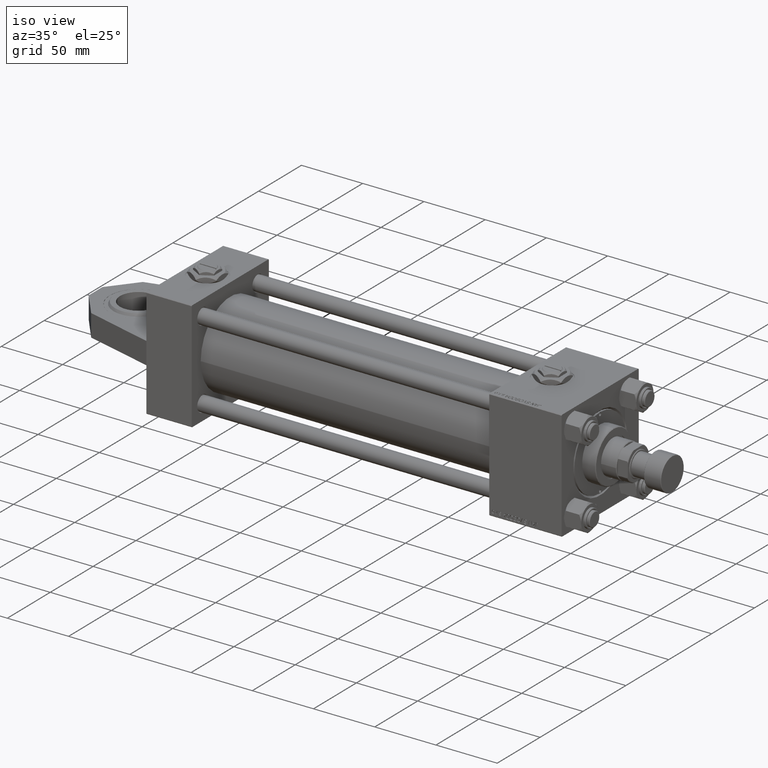
[diagram: clean part render]
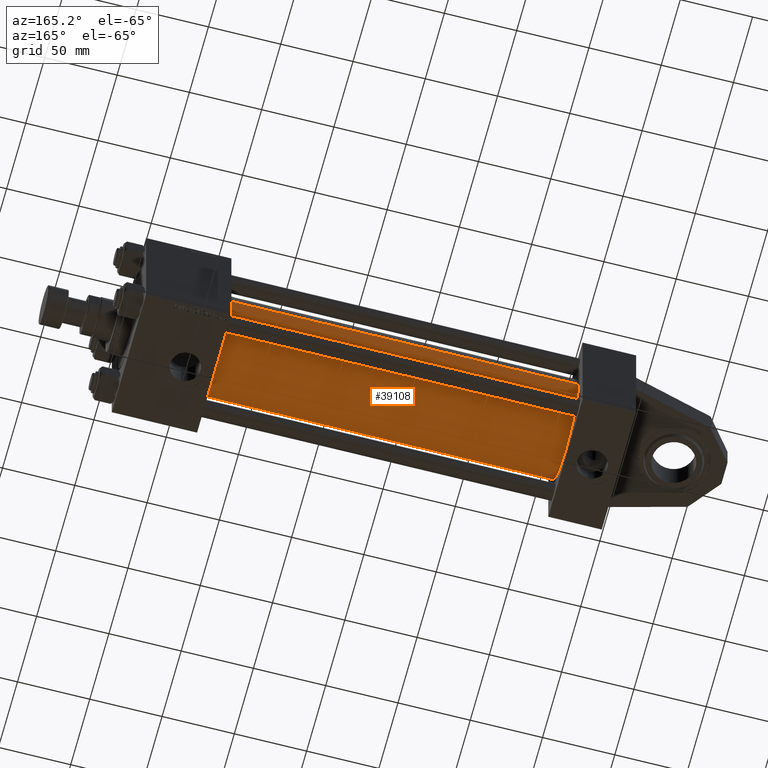
[diagram: tour spotlight — one face highlighted and labeled with its STEP entity id]
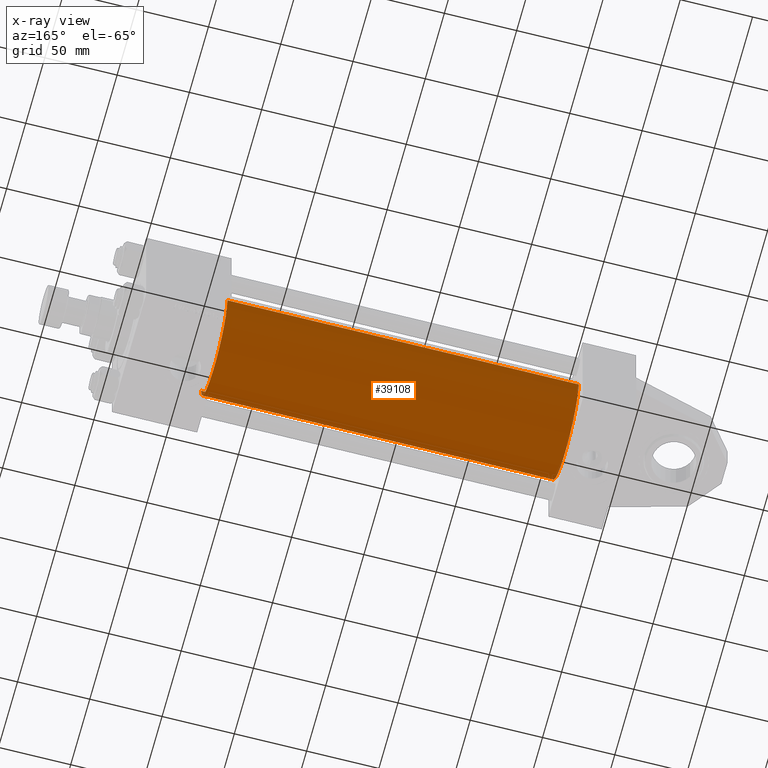
[diagram: x-ray of the same camera — body ghosted, this tour face saturated]
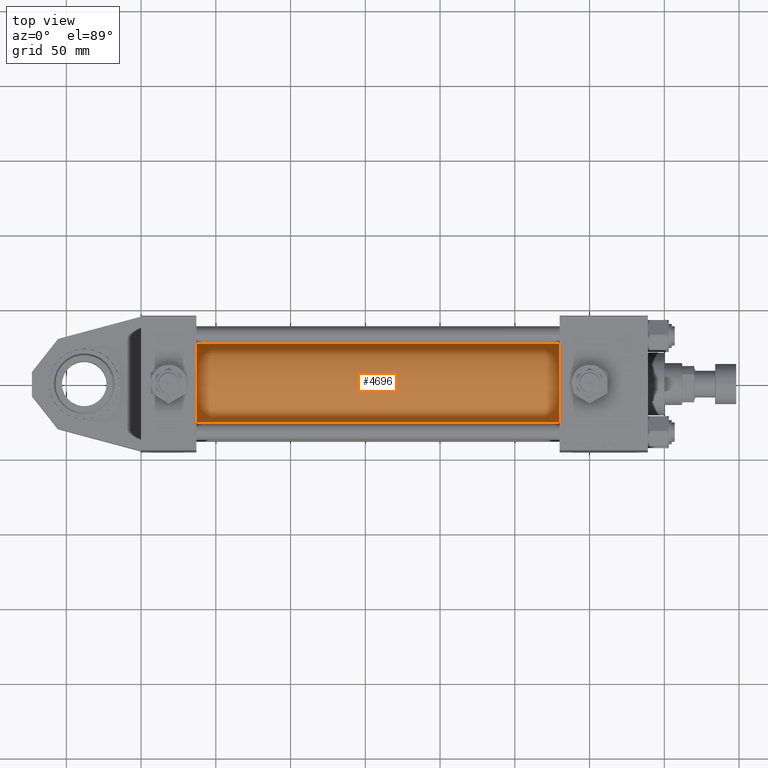
[diagram: tour spotlight — one face highlighted and labeled with its STEP entity id]
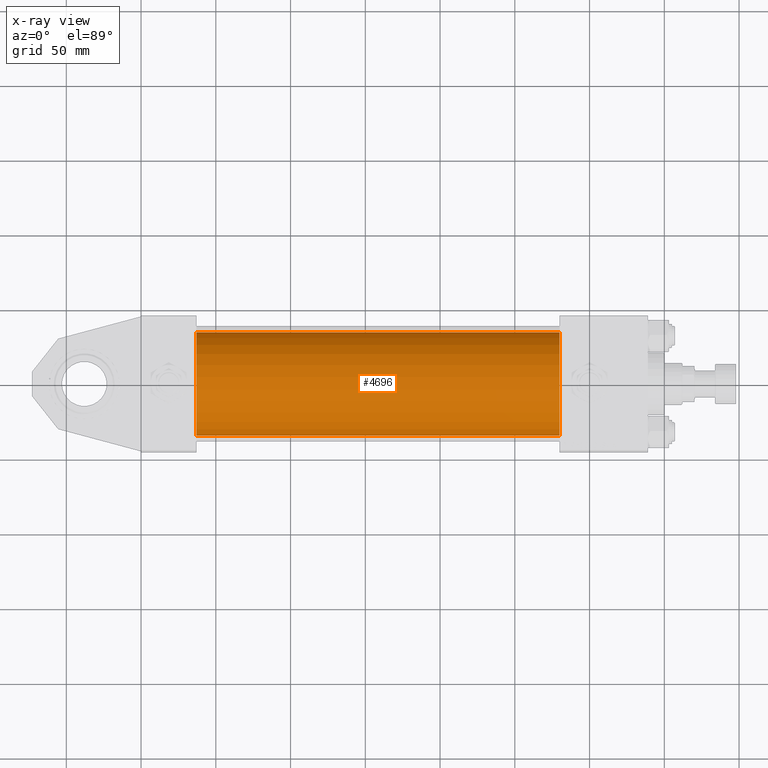
[diagram: x-ray of the same camera — body ghosted, this tour face saturated]
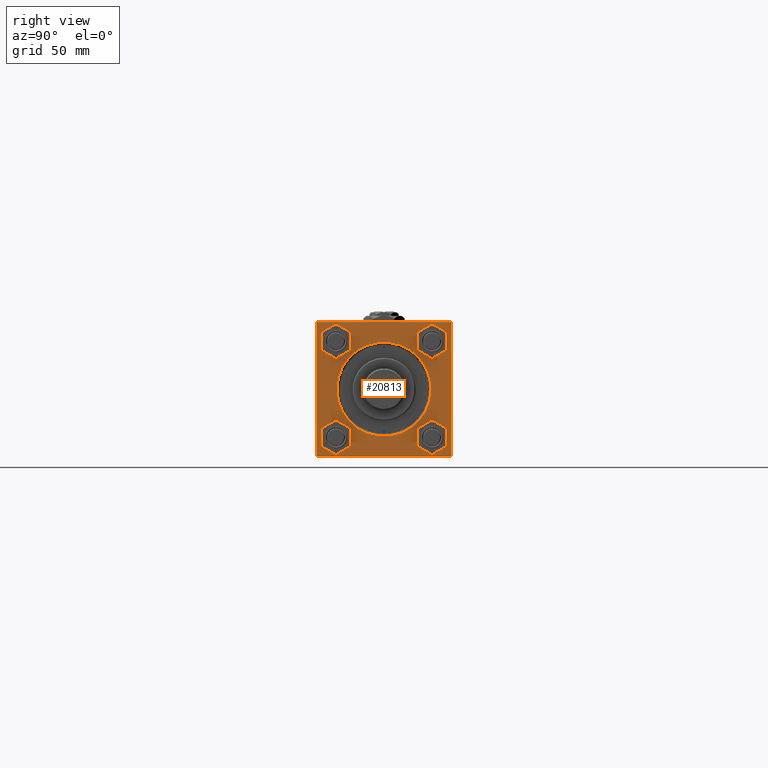
[diagram: tour spotlight — one face highlighted and labeled with its STEP entity id]
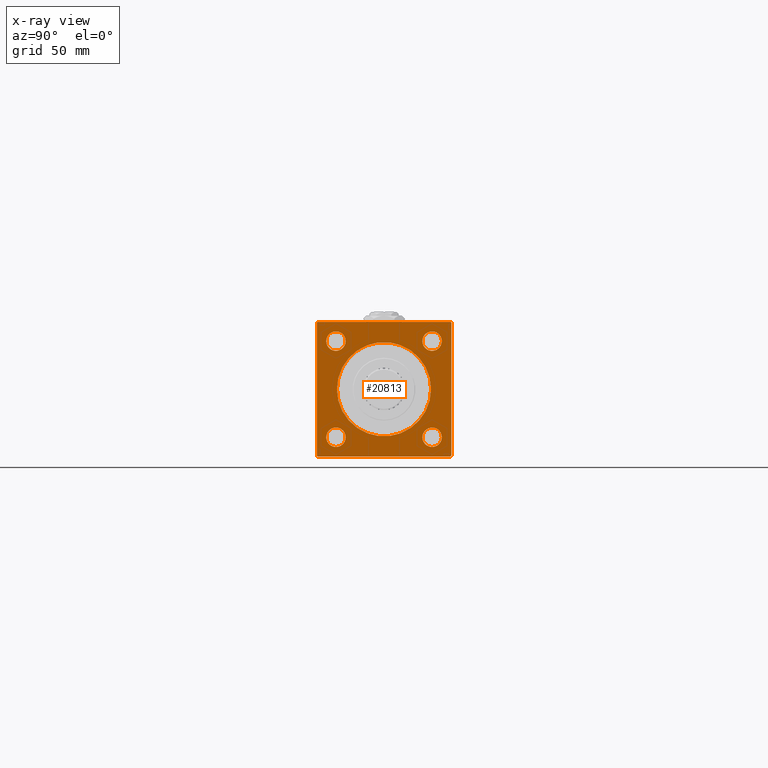
[diagram: x-ray of the same camera — body ghosted, this tour face saturated]
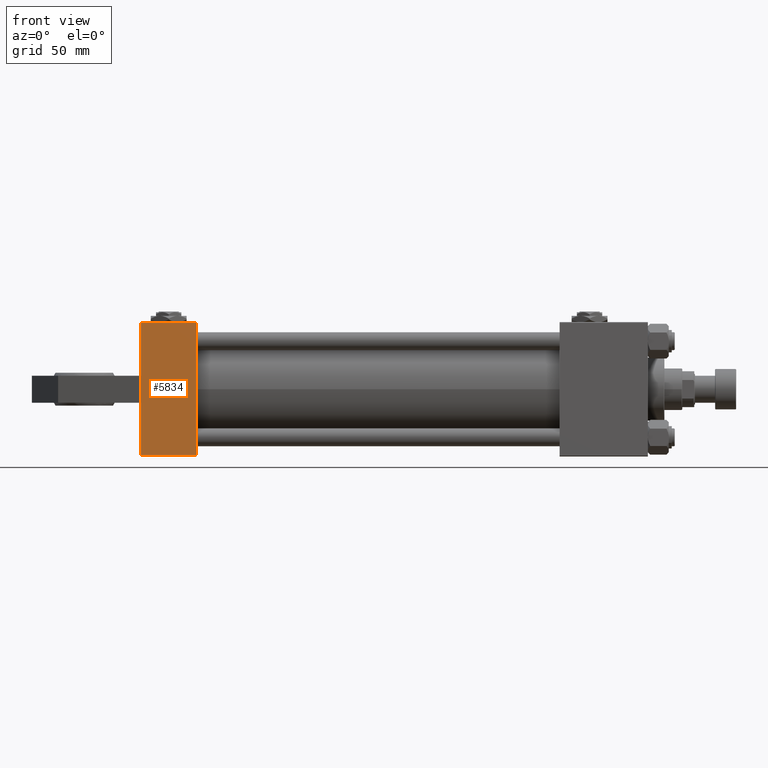
[diagram: tour spotlight — one face highlighted and labeled with its STEP entity id]
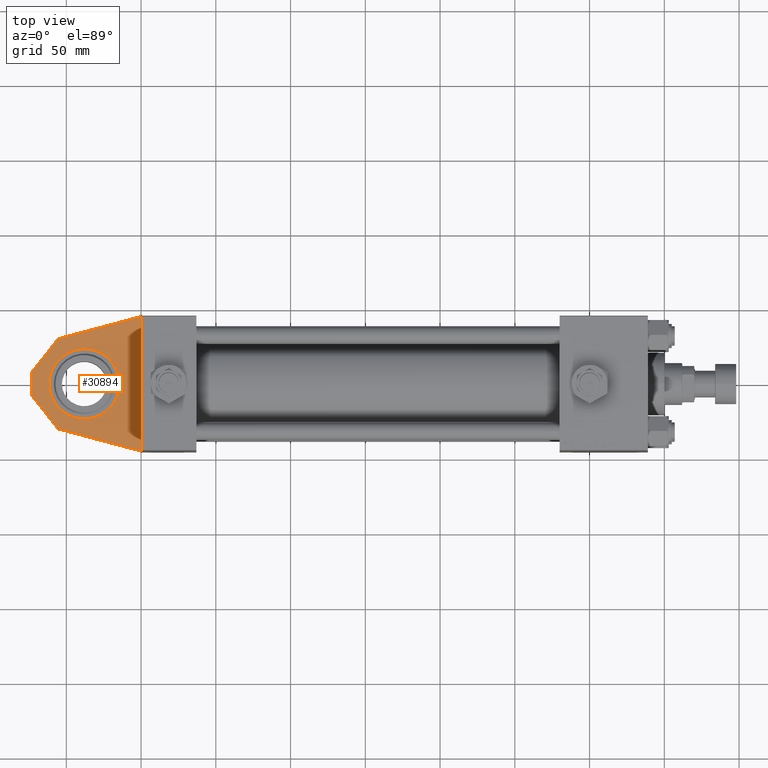
[diagram: tour spotlight — one face highlighted and labeled with its STEP entity id]
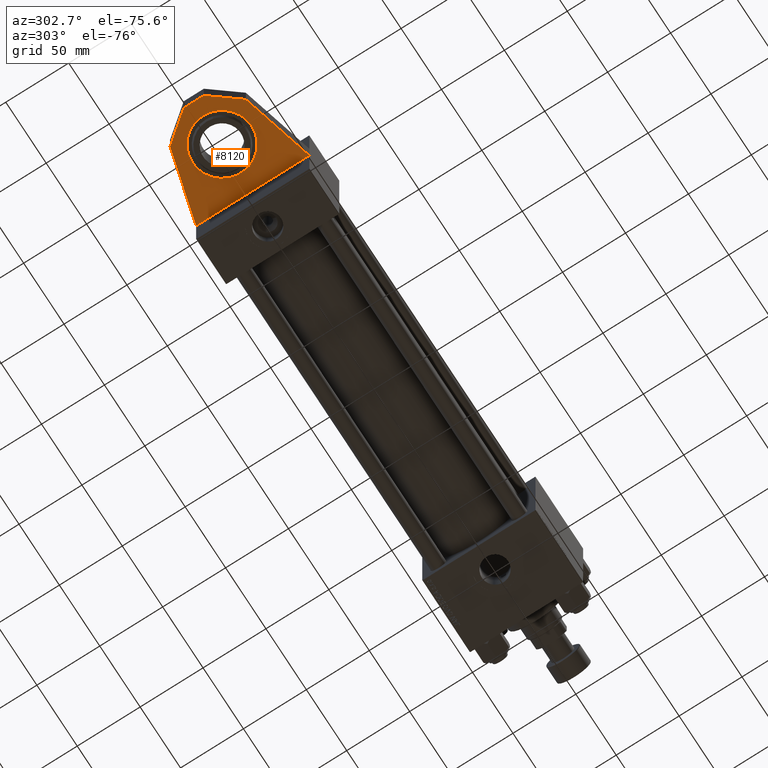
[diagram: tour spotlight — one face highlighted and labeled with its STEP entity id]
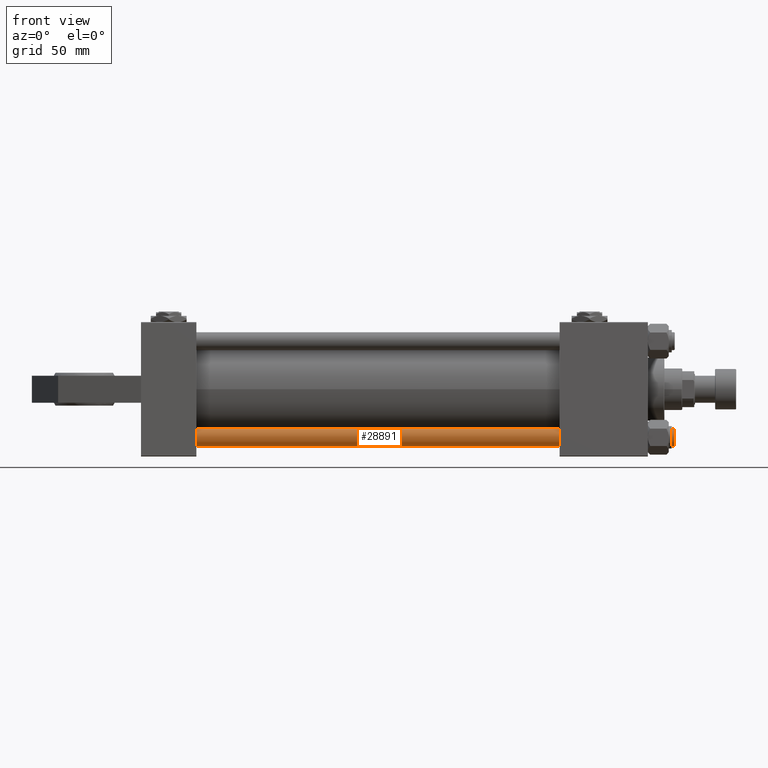
[diagram: tour spotlight — one face highlighted and labeled with its STEP entity id]
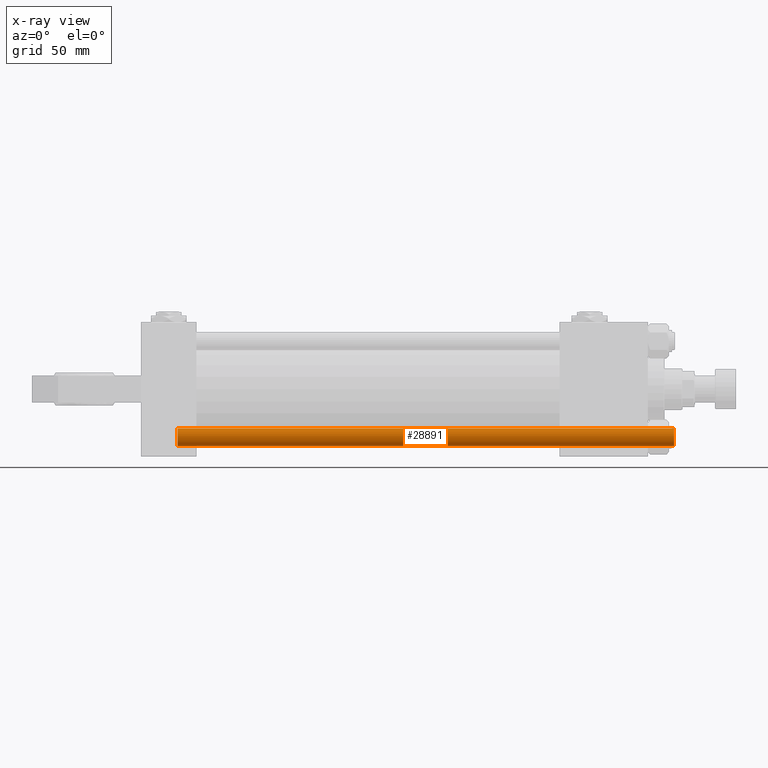
[diagram: x-ray of the same camera — body ghosted, this tour face saturated]
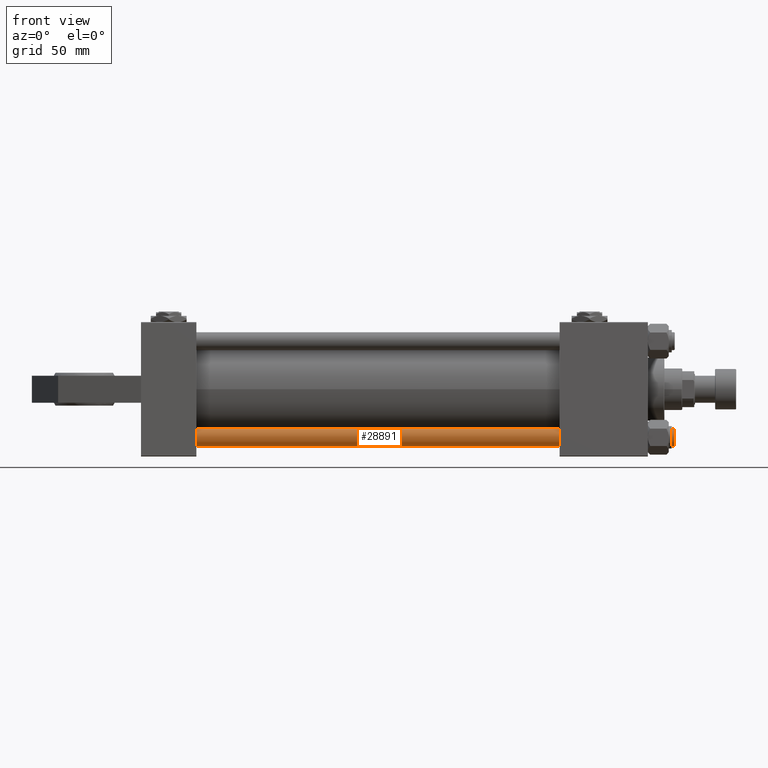
[diagram: tour spotlight — one face highlighted and labeled with its STEP entity id]
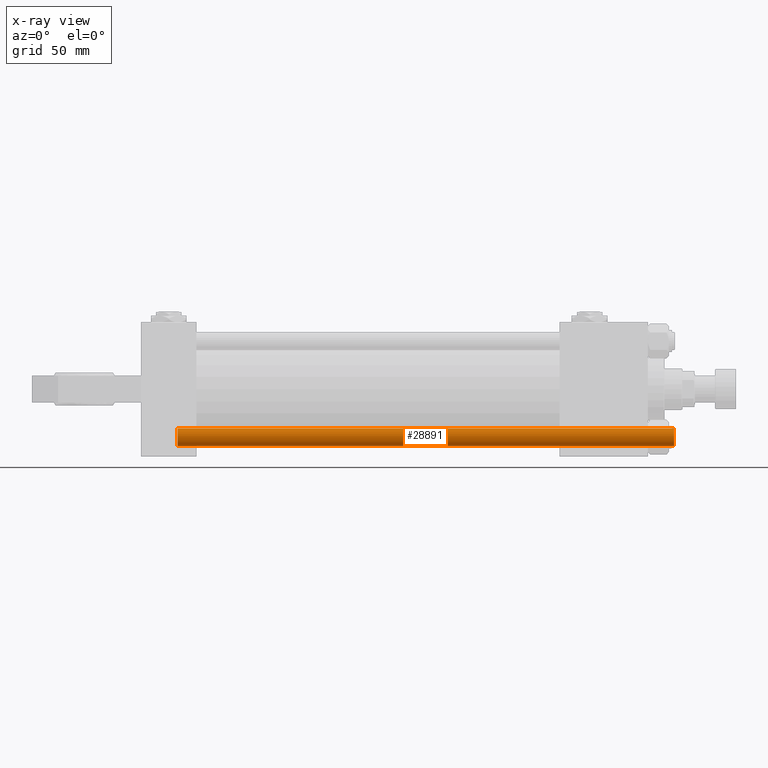
[diagram: x-ray of the same camera — body ghosted, this tour face saturated]
A machine part: a face-by-face anatomy tour. The part has 1260 B-rep faces; the first image is the clean iso view, then the 8 largest visible faces are spotlighted one at a time (largest first), each with its STEP entity span.

Face 1 — auxiliary view, entity #39108. An x-ray twin of the same camera follows (body ghosted, this face saturated) — the face is partly hidden behind the body. In plain terms, the highlighted cylindrical surface (partial cylindrical patch) has radius 34.5 mm, axis along (-1, 0, -0).
Definition (entity closure, byte-faithful):
#784 = FACE_OUTER_BOUND ( 'NONE', #3111, .T. ) ;
#869 = VECTOR ( 'NONE', #36120, 1000.000000000000000 ) ;
#901 = CIRCLE ( 'NONE', #43501, 34.50000000000000000 ) ;
#2462 = CARTESIAN_POINT ( 'NONE',  ( 279.9999999999999432, 1.622946243093158675E-15, -34.50000000000000000 ) ) ;
#3111 = EDGE_LOOP ( 'NONE', ( #20498, #32020, #23591, #7612 ) ) ;
#3422 = DIRECTION ( 'NONE',  ( 0.000000000000000000, 0.000000000000000000, -1.000000000000000000 ) ) ;
#5298 = DIRECTION ( 'NONE',  ( 0.000000000000000000, 0.000000000000000000, 1.000000000000000000 ) ) ;
#7021 = DIRECTION ( 'NONE',  ( 1.000000000000000000, -0.000000000000000000, 0.000000000000000000 ) ) ;
#7612 = ORIENTED_EDGE ( 'NONE', *, *, #31428, .T. ) ;
#8091 = CARTESIAN_POINT ( 'NONE',  ( 279.9999999999999432, -2.602085213965210642E-15, 34.50000000000000000 ) ) ;
#10223 = EDGE_CURVE ( 'NONE', #49852, #46261, #24106, .T. ) ;
#10485 = CARTESIAN_POINT ( 'NONE',  ( 37.00000000000000711, 1.622946243093158675E-15, -34.50000000000000000 ) ) ;
#11192 = EDGE_CURVE ( 'NONE', #49852, #31779, #901, .T. ) ;
#13018 = CARTESIAN_POINT ( 'NONE',  ( 279.9999999999999432, -2.602085213965210642E-15, 0.000000000000000000 ) ) ;
#17164 = CARTESIAN_POINT ( 'NONE',  ( 279.9999999999999432, 1.622946243093158675E-15, -34.50000000000000000 ) ) ;
#17808 = DIRECTION ( 'NONE',  ( -1.000000000000000000, -0.000000000000000000, -0.000000000000000000 ) ) ;
#17924 = VERTEX_POINT ( 'NONE', #10485 ) ;
#18502 = CARTESIAN_POINT ( 'NONE',  ( 37.00000000000000711, -2.602085213965210642E-15, 0.000000000000000000 ) ) ;
#20498 = ORIENTED_EDGE ( 'NONE', *, *, #36136, .F. ) ;
#20916 = LINE ( 'NONE', #17164, #38354 ) ;
#23591 = ORIENTED_EDGE ( 'NONE', *, *, #10223, .T. ) ;
#24106 = LINE ( 'NONE', #8091, #869 ) ;
#25443 = DIRECTION ( 'NONE',  ( -1.000000000000000000, -0.000000000000000000, -0.000000000000000000 ) ) ;
#26231 = CARTESIAN_POINT ( 'NONE',  ( 37.00000000000000711, -2.602085213965210642E-15, 34.50000000000000000 ) ) ;
#31428 = EDGE_CURVE ( 'NONE', #46261, #17924, #51615, .T. ) ;
#31779 = VERTEX_POINT ( 'NONE', #2462 ) ;
#32020 = ORIENTED_EDGE ( 'NONE', *, *, #11192, .F. ) ;
#32469 = AXIS2_PLACEMENT_3D ( 'NONE', #13018, #17808, #5298 ) ;
#35470 = AXIS2_PLACEMENT_3D ( 'NONE', #18502, #7021, #35575 ) ;
#35575 = DIRECTION ( 'NONE',  ( 0.000000000000000000, 0.000000000000000000, 1.000000000000000000 ) ) ;
#36120 = DIRECTION ( 'NONE',  ( -1.000000000000000000, -0.000000000000000000, -0.000000000000000000 ) ) ;
#36136 = EDGE_CURVE ( 'NONE', #31779, #17924, #20916, .T. ) ;
#36747 = CARTESIAN_POINT ( 'NONE',  ( 279.9999999999999432, -2.602085213965210642E-15, 0.000000000000000000 ) ) ;
#38354 = VECTOR ( 'NONE', #25443, 1000.000000000000000 ) ;
#39108 = ADVANCED_FACE ( 'NONE', ( #784 ), #45818, .T. ) ;
#39822 = CARTESIAN_POINT ( 'NONE',  ( 279.9999999999999432, -2.602085213965210642E-15, 34.50000000000000000 ) ) ;
#43501 = AXIS2_PLACEMENT_3D ( 'NONE', #36747, #48186, #3422 ) ;
#45818 = CYLINDRICAL_SURFACE ( 'NONE', #32469, 34.50000000000000000 ) ;
#46261 = VERTEX_POINT ( 'NONE', #26231 ) ;
#48186 = DIRECTION ( 'NONE',  ( 1.000000000000000000, 0.000000000000000000, 0.000000000000000000 ) ) ;
#49852 = VERTEX_POINT ( 'NONE', #39822 ) ;
#51615 = CIRCLE ( 'NONE', #35470, 34.50000000000000000 ) ;

Face 2 — top view, entity #4696. An x-ray twin of the same camera follows (body ghosted, this face saturated) — the face is partly hidden behind the body. In plain terms, the highlighted cylindrical surface (partial cylindrical patch) has radius 34.5 mm, axis along (-1, 0, -0).
Definition (entity closure, byte-faithful):
#869 = VECTOR ( 'NONE', #36120, 1000.000000000000000 ) ;
#2030 = AXIS2_PLACEMENT_3D ( 'NONE', #18991, #11241, #30732 ) ;
#2462 = CARTESIAN_POINT ( 'NONE',  ( 279.9999999999999432, 1.622946243093158675E-15, -34.50000000000000000 ) ) ;
#3773 = ORIENTED_EDGE ( 'NONE', *, *, #44185, .T. ) ;
#4696 = ADVANCED_FACE ( 'NONE', ( #10751 ), #27034, .T. ) ;
#8091 = CARTESIAN_POINT ( 'NONE',  ( 279.9999999999999432, -2.602085213965210642E-15, 34.50000000000000000 ) ) ;
#8772 = EDGE_CURVE ( 'NONE', #31779, #49852, #18707, .T. ) ;
#10223 = EDGE_CURVE ( 'NONE', #49852, #46261, #24106, .T. ) ;
#10485 = CARTESIAN_POINT ( 'NONE',  ( 37.00000000000000711, 1.622946243093158675E-15, -34.50000000000000000 ) ) ;
#10751 = FACE_OUTER_BOUND ( 'NONE', #38986, .T. ) ;
#11241 = DIRECTION ( 'NONE',  ( 1.000000000000000000, -0.000000000000000000, 0.000000000000000000 ) ) ;
#16204 = DIRECTION ( 'NONE',  ( 0.000000000000000000, 0.000000000000000000, -1.000000000000000000 ) ) ;
#17164 = CARTESIAN_POINT ( 'NONE',  ( 279.9999999999999432, 1.622946243093158675E-15, -34.50000000000000000 ) ) ;
#17924 = VERTEX_POINT ( 'NONE', #10485 ) ;
#18707 = CIRCLE ( 'NONE', #41693, 34.50000000000000000 ) ;
#18991 = CARTESIAN_POINT ( 'NONE',  ( 37.00000000000000711, -2.602085213965210642E-15, 0.000000000000000000 ) ) ;
#20916 = LINE ( 'NONE', #17164, #38354 ) ;
#23113 = AXIS2_PLACEMENT_3D ( 'NONE', #43290, #39315, #35309 ) ;
#23857 = ORIENTED_EDGE ( 'NONE', *, *, #36136, .T. ) ;
#24106 = LINE ( 'NONE', #8091, #869 ) ;
#25443 = DIRECTION ( 'NONE',  ( -1.000000000000000000, -0.000000000000000000, -0.000000000000000000 ) ) ;
#26231 = CARTESIAN_POINT ( 'NONE',  ( 37.00000000000000711, -2.602085213965210642E-15, 34.50000000000000000 ) ) ;
#27034 = CYLINDRICAL_SURFACE ( 'NONE', #23113, 34.50000000000000000 ) ;
#30732 = DIRECTION ( 'NONE',  ( 0.000000000000000000, 0.000000000000000000, 1.000000000000000000 ) ) ;
#31779 = VERTEX_POINT ( 'NONE', #2462 ) ;
#32297 = ORIENTED_EDGE ( 'NONE', *, *, #10223, .F. ) ;
#35309 = DIRECTION ( 'NONE',  ( 0.000000000000000000, 0.000000000000000000, 1.000000000000000000 ) ) ;
#36120 = DIRECTION ( 'NONE',  ( -1.000000000000000000, -0.000000000000000000, -0.000000000000000000 ) ) ;
#36136 = EDGE_CURVE ( 'NONE', #31779, #17924, #20916, .T. ) ;
#36775 = CARTESIAN_POINT ( 'NONE',  ( 279.9999999999999432, -2.602085213965210642E-15, 0.000000000000000000 ) ) ;
#37815 = CIRCLE ( 'NONE', #2030, 34.50000000000000000 ) ;
#38354 = VECTOR ( 'NONE', #25443, 1000.000000000000000 ) ;
#38986 = EDGE_LOOP ( 'NONE', ( #39266, #23857, #3773, #32297 ) ) ;
#39266 = ORIENTED_EDGE ( 'NONE', *, *, #8772, .F. ) ;
#39315 = DIRECTION ( 'NONE',  ( -1.000000000000000000, -0.000000000000000000, -0.000000000000000000 ) ) ;
#39822 = CARTESIAN_POINT ( 'NONE',  ( 279.9999999999999432, -2.602085213965210642E-15, 34.50000000000000000 ) ) ;
#41693 = AXIS2_PLACEMENT_3D ( 'NONE', #36775, #48215, #16204 ) ;
#43290 = CARTESIAN_POINT ( 'NONE',  ( 279.9999999999999432, -2.602085213965210642E-15, 0.000000000000000000 ) ) ;
#44185 = EDGE_CURVE ( 'NONE', #17924, #46261, #37815, .T. ) ;
#46261 = VERTEX_POINT ( 'NONE', #26231 ) ;
#48215 = DIRECTION ( 'NONE',  ( 1.000000000000000000, 0.000000000000000000, 0.000000000000000000 ) ) ;
#49852 = VERTEX_POINT ( 'NONE', #39822 ) ;

Face 3 — right view, entity #20813. An x-ray twin of the same camera follows (body ghosted, this face saturated) — the face is partly hidden behind the body. In plain terms, the highlighted planar face has unit normal (-1, 0, 0).
Definition (entity closure, byte-faithful):
#503 = DIRECTION ( 'NONE',  ( 0.000000000000000000, 0.000000000000000000, 1.000000000000000000 ) ) ;
#523 = ORIENTED_EDGE ( 'NONE', *, *, #17255, .F. ) ;
#896 = VERTEX_POINT ( 'NONE', #48042 ) ;
#2075 = EDGE_CURVE ( 'NONE', #3014, #6939, #2184, .T. ) ;
#2184 = LINE ( 'NONE', #50410, #46847 ) ;
#2380 = DIRECTION ( 'NONE',  ( 0.000000000000000000, 0.000000000000000000, 1.000000000000000000 ) ) ;
#2551 = AXIS2_PLACEMENT_3D ( 'NONE', #32233, #33026, #503 ) ;
#2931 = VECTOR ( 'NONE', #17469, 1000.000000000000114 ) ;
#3014 = VERTEX_POINT ( 'NONE', #39954 ) ;
#3382 = EDGE_LOOP ( 'NONE', ( #26659, #29749 ) ) ;
#3827 = ORIENTED_EDGE ( 'NONE', *, *, #23263, .T. ) ;
#3936 = CIRCLE ( 'NONE', #23546, 6.500000000000054179 ) ;
#4094 = FACE_OUTER_BOUND ( 'NONE', #32978, .T. ) ;
#5669 = EDGE_CURVE ( 'NONE', #10979, #34696, #41467, .T. ) ;
#6836 = ORIENTED_EDGE ( 'NONE', *, *, #25395, .T. ) ;
#6939 = VERTEX_POINT ( 'NONE', #31578 ) ;
#6944 = CIRCLE ( 'NONE', #31658, 6.500000000000061284 ) ;
#6971 = CARTESIAN_POINT ( 'NONE',  ( 338.9999999999999432, 45.00000000000001421, 44.49999999999994316 ) ) ;
#7280 = VECTOR ( 'NONE', #13376, 1000.000000000000114 ) ;
#7748 = EDGE_CURVE ( 'NONE', #24706, #23308, #17781, .T. ) ;
#7992 = AXIS2_PLACEMENT_3D ( 'NONE', #46671, #31470, #22938 ) ;
#8108 = AXIS2_PLACEMENT_3D ( 'NONE', #20546, #20023, #36570 ) ;
#8410 = VERTEX_POINT ( 'NONE', #6971 ) ;
#8560 = CARTESIAN_POINT ( 'NONE',  ( 338.9999999999999432, 45.00000000000001421, 45.00000000000000000 ) ) ;
#8767 = EDGE_CURVE ( 'NONE', #46992, #896, #11013, .T. ) ;
#8881 = AXIS2_PLACEMENT_3D ( 'NONE', #14347, #22890, #2380 ) ;
#10280 = VERTEX_POINT ( 'NONE', #11816 ) ;
#10926 = CARTESIAN_POINT ( 'NONE',  ( 338.9999999999999432, 32.14999999999999147, -32.15000000000000568 ) ) ;
#10979 = VERTEX_POINT ( 'NONE', #37598 ) ;
#11013 = CIRCLE ( 'NONE', #2551, 6.500000000000061284 ) ;
#11273 = DIRECTION ( 'NONE',  ( 0.000000000000000000, 0.000000000000000000, 1.000000000000000000 ) ) ;
#11533 = DIRECTION ( 'NONE',  ( -1.000000000000000000, -0.000000000000000000, -0.000000000000000000 ) ) ;
#11752 = VERTEX_POINT ( 'NONE', #16782 ) ;
#11816 = CARTESIAN_POINT ( 'NONE',  ( 338.9999999999999432, -32.15000000000001279, -38.65000000000006963 ) ) ;
#12310 = CARTESIAN_POINT ( 'NONE',  ( 338.9999999999999432, 32.14999999999999147, -32.15000000000000568 ) ) ;
#13286 = ORIENTED_EDGE ( 'NONE', *, *, #33064, .F. ) ;
#13376 = DIRECTION ( 'NONE',  ( 0.000000000000000000, -0.7071067811865474617, 0.7071067811865474617 ) ) ;
#13459 = ORIENTED_EDGE ( 'NONE', *, *, #23195, .T. ) ;
#13556 = CARTESIAN_POINT ( 'NONE',  ( 338.9999999999999432, 0.000000000000000000, 0.000000000000000000 ) ) ;
#13739 = VECTOR ( 'NONE', #36875, 1000.000000000000000 ) ;
#13891 = EDGE_LOOP ( 'NONE', ( #47667, #49601 ) ) ;
#14347 = CARTESIAN_POINT ( 'NONE',  ( 338.9999999999999432, -32.14999999999999147, 32.14999999999999147 ) ) ;
#15394 = VECTOR ( 'NONE', #45531, 1000.000000000000000 ) ;
#15546 = PLANE ( 'NONE',  #26676 ) ;
#16065 = FACE_BOUND ( 'NONE', #3382, .T. ) ;
#16664 = CIRCLE ( 'NONE', #26895, 31.50000000000013856 ) ;
#16782 = CARTESIAN_POINT ( 'NONE',  ( 338.9999999999999432, 45.00000000000001421, -44.49999999999997158 ) ) ;
#17186 = ORIENTED_EDGE ( 'NONE', *, *, #30287, .T. ) ;
#17255 = EDGE_CURVE ( 'NONE', #8410, #11752, #32590, .T. ) ;
#17469 = DIRECTION ( 'NONE',  ( -0.000000000000000000, -0.7071067811865474617, -0.7071067811865474617 ) ) ;
#17685 = EDGE_CURVE ( 'NONE', #23645, #21384, #6944, .T. ) ;
#17781 = CIRCLE ( 'NONE', #37425, 31.50000000000013856 ) ;
#18397 = AXIS2_PLACEMENT_3D ( 'NONE', #27880, #45179, #40410 ) ;
#19561 = FACE_BOUND ( 'NONE', #13891, .T. ) ;
#20023 = DIRECTION ( 'NONE',  ( -1.000000000000000000, -0.000000000000000000, -0.000000000000000000 ) ) ;
#20337 = DIRECTION ( 'NONE',  ( -0.000000000000000000, 0.000000000000000000, 1.000000000000000000 ) ) ;
#20546 = CARTESIAN_POINT ( 'NONE',  ( 338.9999999999999432, -32.15000000000001279, -32.15000000000000568 ) ) ;
#20740 = CARTESIAN_POINT ( 'NONE',  ( 338.9999999999999432, 0.000000000000000000, -31.50000000000013856 ) ) ;
#20813 = ADVANCED_FACE ( 'NONE', ( #16065, #32619, #35845, #19561, #52078, #4094 ), #15546, .F. ) ;
#21384 = VERTEX_POINT ( 'NONE', #44220 ) ;
#22089 = CARTESIAN_POINT ( 'NONE',  ( 338.9999999999999432, 32.14999999999999147, -38.65000000000006253 ) ) ;
#22192 = LINE ( 'NONE', #38216, #7280 ) ;
#22827 = DIRECTION ( 'NONE',  ( -1.000000000000000000, -0.000000000000000000, -0.000000000000000000 ) ) ;
#22890 = DIRECTION ( 'NONE',  ( -1.000000000000000000, -0.000000000000000000, -0.000000000000000000 ) ) ;
#22938 = DIRECTION ( 'NONE',  ( 0.000000000000000000, 0.000000000000000000, 1.000000000000000000 ) ) ;
#22979 = VERTEX_POINT ( 'NONE', #43260 ) ;
#23159 = CARTESIAN_POINT ( 'NONE',  ( 338.9999999999999432, -32.14999999999999147, 32.14999999999999147 ) ) ;
#23195 = EDGE_CURVE ( 'NONE', #896, #46992, #31004, .T. ) ;
#23263 = EDGE_CURVE ( 'NONE', #6939, #29825, #50799, .T. ) ;
#23308 = VERTEX_POINT ( 'NONE', #25750 ) ;
#23546 = AXIS2_PLACEMENT_3D ( 'NONE', #12310, #11533, #11273 ) ;
#23645 = VERTEX_POINT ( 'NONE', #41680 ) ;
#24544 = EDGE_LOOP ( 'NONE', ( #50039, #32627 ) ) ;
#24706 = VERTEX_POINT ( 'NONE', #20740 ) ;
#24874 = DIRECTION ( 'NONE',  ( 0.000000000000000000, -1.000000000000000000, 0.000000000000000000 ) ) ;
#25395 = EDGE_CURVE ( 'NONE', #8410, #3014, #22192, .T. ) ;
#25414 = LINE ( 'NONE', #33681, #29368 ) ;
#25530 = EDGE_CURVE ( 'NONE', #27005, #10280, #29400, .T. ) ;
#25729 = CARTESIAN_POINT ( 'NONE',  ( 338.9999999999999432, -44.49999999999995737, -45.00000000000000000 ) ) ;
#25750 = CARTESIAN_POINT ( 'NONE',  ( 338.9999999999999432, 3.857637417314179255E-15, 31.50000000000013856 ) ) ;
#26659 = ORIENTED_EDGE ( 'NONE', *, *, #31197, .T. ) ;
#26676 = AXIS2_PLACEMENT_3D ( 'NONE', #28348, #31838, #20337 ) ;
#26895 = AXIS2_PLACEMENT_3D ( 'NONE', #43092, #22827, #28395 ) ;
#27005 = VERTEX_POINT ( 'NONE', #40796 ) ;
#27207 = DIRECTION ( 'NONE',  ( -1.000000000000000000, -0.000000000000000000, -0.000000000000000000 ) ) ;
#27880 = CARTESIAN_POINT ( 'NONE',  ( 338.9999999999999432, -32.15000000000001279, -32.15000000000000568 ) ) ;
#28348 = CARTESIAN_POINT ( 'NONE',  ( 338.9999999999999432, 0.000000000000000000, 0.000000000000000000 ) ) ;
#28395 = DIRECTION ( 'NONE',  ( 0.000000000000000000, 0.000000000000000000, 1.000000000000000000 ) ) ;
#28613 = LINE ( 'NONE', #45124, #52517 ) ;
#28770 = VERTEX_POINT ( 'NONE', #22089 ) ;
#29368 = VECTOR ( 'NONE', #45923, 1000.000000000000114 ) ;
#29400 = CIRCLE ( 'NONE', #8108, 6.500000000000061284 ) ;
#29749 = ORIENTED_EDGE ( 'NONE', *, *, #25530, .T. ) ;
#29825 = VERTEX_POINT ( 'NONE', #38383 ) ;
#29886 = ORIENTED_EDGE ( 'NONE', *, *, #2075, .T. ) ;
#30169 = ORIENTED_EDGE ( 'NONE', *, *, #7748, .T. ) ;
#30190 = CIRCLE ( 'NONE', #8881, 6.500000000000061284 ) ;
#30287 = EDGE_CURVE ( 'NONE', #23308, #24706, #16664, .T. ) ;
#30648 = EDGE_CURVE ( 'NONE', #28770, #34627, #3936, .T. ) ;
#31004 = CIRCLE ( 'NONE', #7992, 6.500000000000061284 ) ;
#31197 = EDGE_CURVE ( 'NONE', #10280, #27005, #44810, .T. ) ;
#31470 = DIRECTION ( 'NONE',  ( -1.000000000000000000, -0.000000000000000000, -0.000000000000000000 ) ) ;
#31578 = CARTESIAN_POINT ( 'NONE',  ( 338.9999999999999432, -44.50000000000002842, 44.99999999999998579 ) ) ;
#31658 = AXIS2_PLACEMENT_3D ( 'NONE', #23159, #51921, #38922 ) ;
#31838 = DIRECTION ( 'NONE',  ( -1.000000000000000000, 0.000000000000000000, -0.000000000000000000 ) ) ;
#32233 = CARTESIAN_POINT ( 'NONE',  ( 338.9999999999999432, 32.14999999999999147, 32.15000000000000568 ) ) ;
#32590 = LINE ( 'NONE', #8560, #13739 ) ;
#32619 = FACE_BOUND ( 'NONE', #24544, .T. ) ;
#32627 = ORIENTED_EDGE ( 'NONE', *, *, #43352, .T. ) ;
#32978 = EDGE_LOOP ( 'NONE', ( #44640, #45397, #13286, #35874, #523, #6836, #29886, #3827 ) ) ;
#33026 = DIRECTION ( 'NONE',  ( -1.000000000000000000, -0.000000000000000000, -0.000000000000000000 ) ) ;
#33064 = EDGE_CURVE ( 'NONE', #22979, #34696, #28613, .T. ) ;
#33678 = CARTESIAN_POINT ( 'NONE',  ( 338.9999999999999432, 32.14999999999999147, 25.64999999999994529 ) ) ;
#33681 = CARTESIAN_POINT ( 'NONE',  ( 338.9999999999999432, 45.00000000000001421, -44.50000000000000000 ) ) ;
#33988 = CARTESIAN_POINT ( 'NONE',  ( 338.9999999999999432, -44.49999999999998579, -45.00000000000000000 ) ) ;
#34017 = CARTESIAN_POINT ( 'NONE',  ( 338.9999999999999432, -45.00000000000000000, 44.50000000000004263 ) ) ;
#34097 = EDGE_LOOP ( 'NONE', ( #30169, #17186 ) ) ;
#34627 = VERTEX_POINT ( 'NONE', #49707 ) ;
#34696 = VERTEX_POINT ( 'NONE', #25729 ) ;
#34712 = DIRECTION ( 'NONE',  ( 0.000000000000000000, -1.000000000000000000, -1.541976423090495140E-16 ) ) ;
#35845 = FACE_BOUND ( 'NONE', #40268, .T. ) ;
#35874 = ORIENTED_EDGE ( 'NONE', *, *, #51226, .T. ) ;
#36508 = LINE ( 'NONE', #37043, #15394 ) ;
#36570 = DIRECTION ( 'NONE',  ( 0.000000000000000000, 0.000000000000000000, 1.000000000000000000 ) ) ;
#36875 = DIRECTION ( 'NONE',  ( 0.000000000000000000, 0.000000000000000000, -1.000000000000000000 ) ) ;
#36907 = AXIS2_PLACEMENT_3D ( 'NONE', #10926, #27207, #43464 ) ;
#37043 = CARTESIAN_POINT ( 'NONE',  ( 338.9999999999999432, -45.00000000000000000, 44.99999999999998579 ) ) ;
#37350 = DIRECTION ( 'NONE',  ( -1.000000000000000000, -0.000000000000000000, -0.000000000000000000 ) ) ;
#37425 = AXIS2_PLACEMENT_3D ( 'NONE', #13556, #37350, #49567 ) ;
#37598 = CARTESIAN_POINT ( 'NONE',  ( 338.9999999999999432, -44.99999999999999289, -44.49999999999997158 ) ) ;
#37624 = VECTOR ( 'NONE', #41985, 999.9999999999998863 ) ;
#37887 = EDGE_CURVE ( 'NONE', #29825, #10979, #36508, .T. ) ;
#38216 = CARTESIAN_POINT ( 'NONE',  ( 338.9999999999999432, 44.49999999999995737, 45.00000000000000000 ) ) ;
#38383 = CARTESIAN_POINT ( 'NONE',  ( 338.9999999999999432, -45.00000000000000000, 44.50000000000004263 ) ) ;
#38922 = DIRECTION ( 'NONE',  ( 0.000000000000000000, 0.000000000000000000, 1.000000000000000000 ) ) ;
#39954 = CARTESIAN_POINT ( 'NONE',  ( 338.9999999999999432, 44.49999999999995737, 45.00000000000000000 ) ) ;
#40268 = EDGE_LOOP ( 'NONE', ( #44982, #13459 ) ) ;
#40410 = DIRECTION ( 'NONE',  ( 0.000000000000000000, 0.000000000000000000, 1.000000000000000000 ) ) ;
#40796 = CARTESIAN_POINT ( 'NONE',  ( 338.9999999999999432, -32.15000000000001279, -25.64999999999994529 ) ) ;
#41467 = LINE ( 'NONE', #33988, #37624 ) ;
#41680 = CARTESIAN_POINT ( 'NONE',  ( 338.9999999999999432, -32.14999999999999147, 25.64999999999993108 ) ) ;
#41985 = DIRECTION ( 'NONE',  ( 0.000000000000000000, 0.7071067811865525687, -0.7071067811865425767 ) ) ;
#43092 = CARTESIAN_POINT ( 'NONE',  ( 338.9999999999999432, 0.000000000000000000, 0.000000000000000000 ) ) ;
#43260 = CARTESIAN_POINT ( 'NONE',  ( 338.9999999999999432, 44.50000000000001421, -45.00000000000000000 ) ) ;
#43352 = EDGE_CURVE ( 'NONE', #34627, #28770, #46230, .T. ) ;
#43464 = DIRECTION ( 'NONE',  ( 0.000000000000000000, 0.000000000000000000, 1.000000000000000000 ) ) ;
#44220 = CARTESIAN_POINT ( 'NONE',  ( 338.9999999999999432, -32.14999999999999147, 38.65000000000006253 ) ) ;
#44640 = ORIENTED_EDGE ( 'NONE', *, *, #37887, .T. ) ;
#44810 = CIRCLE ( 'NONE', #18397, 6.500000000000061284 ) ;
#44982 = ORIENTED_EDGE ( 'NONE', *, *, #8767, .T. ) ;
#45124 = CARTESIAN_POINT ( 'NONE',  ( 338.9999999999999432, 45.00000000000001421, -45.00000000000000000 ) ) ;
#45179 = DIRECTION ( 'NONE',  ( -1.000000000000000000, -0.000000000000000000, -0.000000000000000000 ) ) ;
#45397 = ORIENTED_EDGE ( 'NONE', *, *, #5669, .T. ) ;
#45531 = DIRECTION ( 'NONE',  ( 0.000000000000000000, 7.709882115452478166E-17, -1.000000000000000000 ) ) ;
#45923 = DIRECTION ( 'NONE',  ( -0.000000000000000000, 0.7071067811865474617, 0.7071067811865474617 ) ) ;
#46230 = CIRCLE ( 'NONE', #36907, 6.500000000000054179 ) ;
#46575 = EDGE_CURVE ( 'NONE', #21384, #23645, #30190, .T. ) ;
#46671 = CARTESIAN_POINT ( 'NONE',  ( 338.9999999999999432, 32.14999999999999147, 32.15000000000000568 ) ) ;
#46847 = VECTOR ( 'NONE', #34712, 1000.000000000000000 ) ;
#46992 = VERTEX_POINT ( 'NONE', #33678 ) ;
#47667 = ORIENTED_EDGE ( 'NONE', *, *, #17685, .T. ) ;
#48042 = CARTESIAN_POINT ( 'NONE',  ( 338.9999999999999432, 32.14999999999999147, 38.65000000000007674 ) ) ;
#49567 = DIRECTION ( 'NONE',  ( 0.000000000000000000, 0.000000000000000000, 1.000000000000000000 ) ) ;
#49601 = ORIENTED_EDGE ( 'NONE', *, *, #46575, .T. ) ;
#49707 = CARTESIAN_POINT ( 'NONE',  ( 338.9999999999999432, 32.14999999999999147, -25.64999999999994884 ) ) ;
#50039 = ORIENTED_EDGE ( 'NONE', *, *, #30648, .T. ) ;
#50410 = CARTESIAN_POINT ( 'NONE',  ( 338.9999999999999432, 45.00000000000001421, 45.00000000000000000 ) ) ;
#50799 = LINE ( 'NONE', #34017, #2931 ) ;
#51226 = EDGE_CURVE ( 'NONE', #22979, #11752, #25414, .T. ) ;
#51921 = DIRECTION ( 'NONE',  ( -1.000000000000000000, -0.000000000000000000, -0.000000000000000000 ) ) ;
#52078 = FACE_BOUND ( 'NONE', #34097, .T. ) ;
#52517 = VECTOR ( 'NONE', #24874, 1000.000000000000000 ) ;

Face 4 — front view, entity #5834. In plain terms, the highlighted planar face has unit normal (0, 1, 0).
Definition (entity closure, byte-faithful):
#437 = CARTESIAN_POINT ( 'NONE',  ( 0.000000000000000000, -9.000000000000000000, 45.00000000000000000 ) ) ;
#627 = CARTESIAN_POINT ( 'NONE',  ( 37.00000000000000000, -44.49999999999995737, 45.00000000000000000 ) ) ;
#2288 = LINE ( 'NONE', #15560, #36113 ) ;
#2527 = DIRECTION ( 'NONE',  ( 0.000000000000000000, 1.541976423090495633E-16, -1.000000000000000000 ) ) ;
#4524 = EDGE_CURVE ( 'NONE', #41640, #25734, #15314, .T. ) ;
#5834 = ADVANCED_FACE ( 'NONE', ( #39066 ), #46507, .F. ) ;
#6182 = LINE ( 'NONE', #46439, #34629 ) ;
#6699 = VERTEX_POINT ( 'NONE', #45972 ) ;
#6776 = DIRECTION ( 'NONE',  ( 0.000000000000000000, 1.000000000000000000, 0.000000000000000000 ) ) ;
#7916 = ORIENTED_EDGE ( 'NONE', *, *, #38490, .F. ) ;
#8149 = CARTESIAN_POINT ( 'NONE',  ( 0.000000000000000000, -44.49999999999995737, 45.00000000000000000 ) ) ;
#9122 = ORIENTED_EDGE ( 'NONE', *, *, #22662, .F. ) ;
#10543 = DIRECTION ( 'NONE',  ( 0.000000000000000000, -1.000000000000000000, -1.541976423090495387E-16 ) ) ;
#12845 = VECTOR ( 'NONE', #10543, 1000.000000000000000 ) ;
#13373 = LINE ( 'NONE', #46179, #50815 ) ;
#15314 = LINE ( 'NONE', #43873, #12845 ) ;
#15560 = CARTESIAN_POINT ( 'NONE',  ( 37.00000000000000000, 44.99999999999998579, 45.00000000000001421 ) ) ;
#16226 = VERTEX_POINT ( 'NONE', #48618 ) ;
#19047 = LINE ( 'NONE', #51033, #20505 ) ;
#19755 = CARTESIAN_POINT ( 'NONE',  ( 37.00000000000000000, 44.99999999999998579, 45.00000000000001421 ) ) ;
#20291 = ORIENTED_EDGE ( 'NONE', *, *, #45323, .T. ) ;
#20505 = VECTOR ( 'NONE', #6776, 1000.000000000000000 ) ;
#20962 = VERTEX_POINT ( 'NONE', #627 ) ;
#21255 = VERTEX_POINT ( 'NONE', #24818 ) ;
#21881 = LINE ( 'NONE', #38174, #28464 ) ;
#22662 = EDGE_CURVE ( 'NONE', #6699, #20962, #2288, .T. ) ;
#24197 = ORIENTED_EDGE ( 'NONE', *, *, #31748, .T. ) ;
#24818 = CARTESIAN_POINT ( 'NONE',  ( 0.000000000000000000, 9.000000000000000000, 45.00000000000000000 ) ) ;
#25734 = VERTEX_POINT ( 'NONE', #8149 ) ;
#26720 = DIRECTION ( 'NONE',  ( 0.000000000000000000, -1.000000000000000000, -1.541976423090495387E-16 ) ) ;
#28464 = VECTOR ( 'NONE', #37381, 1000.000000000000000 ) ;
#28852 = EDGE_LOOP ( 'NONE', ( #24197, #7916, #31156, #49462, #9122, #20291 ) ) ;
#31156 = ORIENTED_EDGE ( 'NONE', *, *, #4524, .T. ) ;
#31748 = EDGE_CURVE ( 'NONE', #16226, #21255, #6182, .T. ) ;
#32641 = EDGE_CURVE ( 'NONE', #25734, #20962, #13373, .T. ) ;
#34629 = VECTOR ( 'NONE', #26720, 1000.000000000000000 ) ;
#35053 = DIRECTION ( 'NONE',  ( 0.000000000000000000, 1.000000000000000000, 1.541976423090495633E-16 ) ) ;
#36113 = VECTOR ( 'NONE', #52093, 1000.000000000000000 ) ;
#37381 = DIRECTION ( 'NONE',  ( -1.000000000000000000, 0.000000000000000000, 0.000000000000000000 ) ) ;
#37949 = DIRECTION ( 'NONE',  ( 1.000000000000000000, 0.000000000000000000, 0.000000000000000000 ) ) ;
#38174 = CARTESIAN_POINT ( 'NONE',  ( 0.000000000000000000, 44.49999999999998579, 45.00000000000001421 ) ) ;
#38490 = EDGE_CURVE ( 'NONE', #41640, #21255, #19047, .T. ) ;
#39066 = FACE_OUTER_BOUND ( 'NONE', #28852, .T. ) ;
#41640 = VERTEX_POINT ( 'NONE', #437 ) ;
#43873 = CARTESIAN_POINT ( 'NONE',  ( 0.000000000000000000, 44.99999999999998579, 45.00000000000001421 ) ) ;
#45323 = EDGE_CURVE ( 'NONE', #6699, #16226, #21881, .T. ) ;
#45972 = CARTESIAN_POINT ( 'NONE',  ( 37.00000000000000000, 44.49999999999998579, 45.00000000000001421 ) ) ;
#46179 = CARTESIAN_POINT ( 'NONE',  ( 37.00000000000000000, -44.49999999999998579, 45.00000000000000000 ) ) ;
#46439 = CARTESIAN_POINT ( 'NONE',  ( 0.000000000000000000, 44.99999999999998579, 45.00000000000001421 ) ) ;
#46507 = PLANE ( 'NONE',  #52057 ) ;
#48618 = CARTESIAN_POINT ( 'NONE',  ( 0.000000000000000000, 44.49999999999998579, 45.00000000000001421 ) ) ;
#49462 = ORIENTED_EDGE ( 'NONE', *, *, #32641, .T. ) ;
#50815 = VECTOR ( 'NONE', #37949, 1000.000000000000000 ) ;
#51033 = CARTESIAN_POINT ( 'NONE',  ( 0.000000000000000000, -9.000000000000000000, 45.00000000000000000 ) ) ;
#52057 = AXIS2_PLACEMENT_3D ( 'NONE', #19755, #2527, #35053 ) ;
#52093 = DIRECTION ( 'NONE',  ( 0.000000000000000000, -1.000000000000000000, -1.541976423090495387E-16 ) ) ;

Face 5 — top view, entity #30894. In plain terms, the highlighted planar face has unit normal (0, 0, 1).
Definition (entity closure, byte-faithful):
#950 = VECTOR ( 'NONE', #31875, 1000.000000000000114 ) ;
#1650 = FACE_BOUND ( 'NONE', #35695, .T. ) ;
#2450 = FACE_OUTER_BOUND ( 'NONE', #41893, .T. ) ;
#2734 = DIRECTION ( 'NONE',  ( -0.6202965109737120786, -0.000000000000000000, 0.7843674129346778212 ) ) ;
#3328 = DIRECTION ( 'NONE',  ( 0.000000000000000000, 1.000000000000000000, 0.000000000000000000 ) ) ;
#3681 = ORIENTED_EDGE ( 'NONE', *, *, #10276, .F. ) ;
#4369 = CARTESIAN_POINT ( 'NONE',  ( -55.50000000000000000, 9.000000000000000000, 30.12881982007244019 ) ) ;
#5117 = AXIS2_PLACEMENT_3D ( 'NONE', #48093, #3328, #27850 ) ;
#5436 = VERTEX_POINT ( 'NONE', #51623 ) ;
#7888 = VERTEX_POINT ( 'NONE', #39719 ) ;
#8088 = VECTOR ( 'NONE', #36645, 1000.000000000000227 ) ;
#8132 = EDGE_CURVE ( 'NONE', #46996, #50583, #23827, .T. ) ;
#8407 = EDGE_CURVE ( 'NONE', #50583, #5436, #39267, .T. ) ;
#10276 = EDGE_CURVE ( 'NONE', #43328, #36362, #42585, .T. ) ;
#10322 = ORIENTED_EDGE ( 'NONE', *, *, #14207, .T. ) ;
#11981 = DIRECTION ( 'NONE',  ( 0.000000000000000000, 1.000000000000000000, 0.000000000000000000 ) ) ;
#14207 = EDGE_CURVE ( 'NONE', #21255, #46996, #48953, .T. ) ;
#15458 = VECTOR ( 'NONE', #36987, 1000.000000000000000 ) ;
#18432 = DIRECTION ( 'NONE',  ( -0.000000000000000000, 1.000000000000000000, 0.000000000000000000 ) ) ;
#19073 = CARTESIAN_POINT ( 'NONE',  ( -73.00000000000001421, 9.000000000000000000, 8.000000000000005329 ) ) ;
#20353 = LINE ( 'NONE', #4369, #8088 ) ;
#21255 = VERTEX_POINT ( 'NONE', #24818 ) ;
#21941 = CARTESIAN_POINT ( 'NONE',  ( -73.00000000000001421, 9.000000000000000000, -7.999999999999994671 ) ) ;
#22197 = ORIENTED_EDGE ( 'NONE', *, *, #8407, .T. ) ;
#23521 = CARTESIAN_POINT ( 'NONE',  ( -73.00000000000001421, 9.000000000000000000, -7.999999999999994671 ) ) ;
#23827 = LINE ( 'NONE', #27048, #30595 ) ;
#24010 = ORIENTED_EDGE ( 'NONE', *, *, #51279, .T. ) ;
#24766 = CARTESIAN_POINT ( 'NONE',  ( -55.50000000000000711, 9.000000000000000000, -30.12881982007243309 ) ) ;
#24818 = CARTESIAN_POINT ( 'NONE',  ( 0.000000000000000000, 9.000000000000000000, 45.00000000000000000 ) ) ;
#25680 = ORIENTED_EDGE ( 'NONE', *, *, #27725, .F. ) ;
#25907 = PLANE ( 'NONE',  #30355 ) ;
#26685 = ORIENTED_EDGE ( 'NONE', *, *, #47915, .T. ) ;
#27048 = CARTESIAN_POINT ( 'NONE',  ( -55.50000000000000711, 9.000000000000000000, -30.12881982007243309 ) ) ;
#27725 = EDGE_CURVE ( 'NONE', #36362, #43328, #38912, .T. ) ;
#27850 = DIRECTION ( 'NONE',  ( 0.000000000000000000, 0.000000000000000000, 1.000000000000000000 ) ) ;
#28069 = CARTESIAN_POINT ( 'NONE',  ( -73.00000000000001421, 9.000000000000000000, 8.000000000000005329 ) ) ;
#28269 = DIRECTION ( 'NONE',  ( 0.000000000000000000, 0.000000000000000000, 1.000000000000000000 ) ) ;
#30355 = AXIS2_PLACEMENT_3D ( 'NONE', #42171, #18432, #34716 ) ;
#30595 = VECTOR ( 'NONE', #43302, 1000.000000000000227 ) ;
#30894 = ADVANCED_FACE ( 'NONE', ( #1650, #2450 ), #25907, .T. ) ;
#31541 = ORIENTED_EDGE ( 'NONE', *, *, #38795, .T. ) ;
#31875 = DIRECTION ( 'NONE',  ( 0.6202965109737124116, 0.000000000000000000, 0.7843674129346777102 ) ) ;
#32069 = AXIS2_PLACEMENT_3D ( 'NONE', #35765, #11981, #28269 ) ;
#33939 = CARTESIAN_POINT ( 'NONE',  ( 0.000000000000000000, 9.000000000000000000, -45.00000000000000000 ) ) ;
#34716 = DIRECTION ( 'NONE',  ( 0.000000000000000000, -0.000000000000000000, 1.000000000000000000 ) ) ;
#35695 = EDGE_LOOP ( 'NONE', ( #3681, #25680 ) ) ;
#35765 = CARTESIAN_POINT ( 'NONE',  ( -38.00000000000000000, 9.000000000000000000, 0.000000000000000000 ) ) ;
#36362 = VERTEX_POINT ( 'NONE', #43823 ) ;
#36454 = CARTESIAN_POINT ( 'NONE',  ( 0.000000000000000000, 9.000000000000000000, 45.00000000000000000 ) ) ;
#36645 = DIRECTION ( 'NONE',  ( 0.9659258262890672020, 0.000000000000000000, 0.2588190451025247363 ) ) ;
#36987 = DIRECTION ( 'NONE',  ( 0.000000000000000000, 0.000000000000000000, -1.000000000000000000 ) ) ;
#38795 = EDGE_CURVE ( 'NONE', #39983, #7888, #48368, .T. ) ;
#38912 = CIRCLE ( 'NONE', #32069, 23.50000000000000355 ) ;
#39267 = LINE ( 'NONE', #23521, #42503 ) ;
#39719 = CARTESIAN_POINT ( 'NONE',  ( -55.50000000000000000, 9.000000000000000000, 30.12881982007244019 ) ) ;
#39983 = VERTEX_POINT ( 'NONE', #28069 ) ;
#41297 = VECTOR ( 'NONE', #46197, 1000.000000000000000 ) ;
#41893 = EDGE_LOOP ( 'NONE', ( #31541, #26685, #10322, #49573, #22197, #24010 ) ) ;
#42171 = CARTESIAN_POINT ( 'NONE',  ( 0.000000000000000000, 9.000000000000000000, 0.000000000000000000 ) ) ;
#42503 = VECTOR ( 'NONE', #2734, 1000.000000000000227 ) ;
#42585 = CIRCLE ( 'NONE', #5117, 23.50000000000000355 ) ;
#43302 = DIRECTION ( 'NONE',  ( -0.9659258262890670910, -0.000000000000000000, 0.2588190451025247918 ) ) ;
#43328 = VERTEX_POINT ( 'NONE', #46930 ) ;
#43823 = CARTESIAN_POINT ( 'NONE',  ( -38.00000000000000000, 9.000000000000000000, -23.50000000000000355 ) ) ;
#45671 = LINE ( 'NONE', #21941, #41297 ) ;
#46197 = DIRECTION ( 'NONE',  ( 0.000000000000000000, 0.000000000000000000, 1.000000000000000000 ) ) ;
#46930 = CARTESIAN_POINT ( 'NONE',  ( -38.00000000000000000, 9.000000000000000000, 23.50000000000000355 ) ) ;
#46996 = VERTEX_POINT ( 'NONE', #33939 ) ;
#47915 = EDGE_CURVE ( 'NONE', #7888, #21255, #20353, .T. ) ;
#48093 = CARTESIAN_POINT ( 'NONE',  ( -38.00000000000000000, 9.000000000000000000, 0.000000000000000000 ) ) ;
#48368 = LINE ( 'NONE', #19073, #950 ) ;
#48953 = LINE ( 'NONE', #36454, #15458 ) ;
#49573 = ORIENTED_EDGE ( 'NONE', *, *, #8132, .T. ) ;
#50583 = VERTEX_POINT ( 'NONE', #24766 ) ;
#51279 = EDGE_CURVE ( 'NONE', #5436, #39983, #45671, .T. ) ;
#51623 = CARTESIAN_POINT ( 'NONE',  ( -73.00000000000001421, 9.000000000000000000, -7.999999999999994671 ) ) ;

Face 6 — auxiliary view, entity #8120. In plain terms, the highlighted planar face has unit normal (0, 0, 1).
Definition (entity closure, byte-faithful):
#376 = EDGE_CURVE ( 'NONE', #47658, #41640, #6286, .T. ) ;
#437 = CARTESIAN_POINT ( 'NONE',  ( 0.000000000000000000, -9.000000000000000000, 45.00000000000000000 ) ) ;
#3098 = EDGE_CURVE ( 'NONE', #13732, #18099, #50018, .T. ) ;
#4448 = ORIENTED_EDGE ( 'NONE', *, *, #24554, .F. ) ;
#4982 = CARTESIAN_POINT ( 'NONE',  ( -55.50000000000000711, -9.000000000000000000, -30.12881982007243309 ) ) ;
#6286 = LINE ( 'NONE', #34295, #31456 ) ;
#6878 = CARTESIAN_POINT ( 'NONE',  ( -73.00000000000001421, -9.000000000000000000, -7.999999999999994671 ) ) ;
#7146 = CIRCLE ( 'NONE', #13102, 23.50000000000000355 ) ;
#7172 = VECTOR ( 'NONE', #51972, 1000.000000000000227 ) ;
#7447 = CARTESIAN_POINT ( 'NONE',  ( -73.00000000000001421, -9.000000000000000000, -7.999999999999994671 ) ) ;
#7990 = ORIENTED_EDGE ( 'NONE', *, *, #37960, .F. ) ;
#8120 = ADVANCED_FACE ( 'NONE', ( #15025, #18763 ), #31047, .F. ) ;
#9810 = CARTESIAN_POINT ( 'NONE',  ( -38.00000000000000000, -9.000000000000000000, 0.000000000000000000 ) ) ;
#9932 = EDGE_LOOP ( 'NONE', ( #4448, #7990, #46188, #14167, #38344, #17779 ) ) ;
#10762 = DIRECTION ( 'NONE',  ( 0.000000000000000000, -0.000000000000000000, 1.000000000000000000 ) ) ;
#11498 = VECTOR ( 'NONE', #28487, 1000.000000000000114 ) ;
#11961 = LINE ( 'NONE', #7447, #7172 ) ;
#12132 = DIRECTION ( 'NONE',  ( 0.000000000000000000, 0.000000000000000000, -1.000000000000000000 ) ) ;
#12638 = EDGE_LOOP ( 'NONE', ( #44140, #20252 ) ) ;
#13102 = AXIS2_PLACEMENT_3D ( 'NONE', #9810, #42621, #50874 ) ;
#13732 = VERTEX_POINT ( 'NONE', #49853 ) ;
#14167 = ORIENTED_EDGE ( 'NONE', *, *, #3098, .F. ) ;
#15025 = FACE_BOUND ( 'NONE', #12638, .T. ) ;
#15276 = CARTESIAN_POINT ( 'NONE',  ( 0.000000000000000000, -9.000000000000000000, 0.000000000000000000 ) ) ;
#17779 = ORIENTED_EDGE ( 'NONE', *, *, #376, .F. ) ;
#18099 = VERTEX_POINT ( 'NONE', #32331 ) ;
#18546 = DIRECTION ( 'NONE',  ( 0.9659258262890672020, 0.000000000000000000, 0.2588190451025247363 ) ) ;
#18763 = FACE_OUTER_BOUND ( 'NONE', #9932, .T. ) ;
#19442 = CARTESIAN_POINT ( 'NONE',  ( -73.00000000000001421, -9.000000000000000000, 8.000000000000005329 ) ) ;
#20252 = ORIENTED_EDGE ( 'NONE', *, *, #45684, .T. ) ;
#21259 = DIRECTION ( 'NONE',  ( 0.000000000000000000, 0.000000000000000000, 1.000000000000000000 ) ) ;
#22064 = AXIS2_PLACEMENT_3D ( 'NONE', #15276, #47296, #10762 ) ;
#22105 = VERTEX_POINT ( 'NONE', #25406 ) ;
#23114 = CARTESIAN_POINT ( 'NONE',  ( 0.000000000000000000, -9.000000000000000000, 45.00000000000000000 ) ) ;
#23246 = EDGE_CURVE ( 'NONE', #18099, #29869, #11961, .T. ) ;
#24406 = CIRCLE ( 'NONE', #29508, 23.50000000000000355 ) ;
#24554 = EDGE_CURVE ( 'NONE', #47077, #47658, #35983, .T. ) ;
#24814 = EDGE_CURVE ( 'NONE', #41640, #13732, #48664, .T. ) ;
#25406 = CARTESIAN_POINT ( 'NONE',  ( -38.00000000000000000, -9.000000000000000000, -23.50000000000000355 ) ) ;
#26501 = VECTOR ( 'NONE', #21259, 1000.000000000000000 ) ;
#28487 = DIRECTION ( 'NONE',  ( 0.6202965109737124116, 0.000000000000000000, 0.7843674129346777102 ) ) ;
#29218 = CARTESIAN_POINT ( 'NONE',  ( -55.50000000000000000, -9.000000000000000000, 30.12881982007244019 ) ) ;
#29508 = AXIS2_PLACEMENT_3D ( 'NONE', #36295, #43761, #32542 ) ;
#29869 = VERTEX_POINT ( 'NONE', #6878 ) ;
#31047 = PLANE ( 'NONE',  #22064 ) ;
#31456 = VECTOR ( 'NONE', #18546, 1000.000000000000227 ) ;
#31872 = EDGE_CURVE ( 'NONE', #48979, #22105, #24406, .T. ) ;
#32331 = CARTESIAN_POINT ( 'NONE',  ( -55.50000000000000711, -9.000000000000000000, -30.12881982007243309 ) ) ;
#32542 = DIRECTION ( 'NONE',  ( 0.000000000000000000, 0.000000000000000000, 1.000000000000000000 ) ) ;
#34295 = CARTESIAN_POINT ( 'NONE',  ( -55.50000000000000000, -9.000000000000000000, 30.12881982007244019 ) ) ;
#35983 = LINE ( 'NONE', #19442, #11498 ) ;
#36295 = CARTESIAN_POINT ( 'NONE',  ( -38.00000000000000000, -9.000000000000000000, 0.000000000000000000 ) ) ;
#37796 = DIRECTION ( 'NONE',  ( -0.9659258262890670910, -0.000000000000000000, 0.2588190451025247918 ) ) ;
#37960 = EDGE_CURVE ( 'NONE', #29869, #47077, #50844, .T. ) ;
#38344 = ORIENTED_EDGE ( 'NONE', *, *, #24814, .F. ) ;
#40893 = VECTOR ( 'NONE', #37796, 1000.000000000000227 ) ;
#41640 = VERTEX_POINT ( 'NONE', #437 ) ;
#42621 = DIRECTION ( 'NONE',  ( 0.000000000000000000, 1.000000000000000000, 0.000000000000000000 ) ) ;
#43761 = DIRECTION ( 'NONE',  ( 0.000000000000000000, 1.000000000000000000, 0.000000000000000000 ) ) ;
#44140 = ORIENTED_EDGE ( 'NONE', *, *, #31872, .T. ) ;
#45684 = EDGE_CURVE ( 'NONE', #22105, #48979, #7146, .T. ) ;
#46188 = ORIENTED_EDGE ( 'NONE', *, *, #23246, .F. ) ;
#46915 = CARTESIAN_POINT ( 'NONE',  ( -73.00000000000001421, -9.000000000000000000, 8.000000000000005329 ) ) ;
#47077 = VERTEX_POINT ( 'NONE', #46915 ) ;
#47296 = DIRECTION ( 'NONE',  ( -0.000000000000000000, 1.000000000000000000, 0.000000000000000000 ) ) ;
#47658 = VERTEX_POINT ( 'NONE', #29218 ) ;
#47773 = CARTESIAN_POINT ( 'NONE',  ( -38.00000000000000000, -9.000000000000000000, 23.50000000000000355 ) ) ;
#48664 = LINE ( 'NONE', #23114, #48951 ) ;
#48951 = VECTOR ( 'NONE', #12132, 1000.000000000000000 ) ;
#48979 = VERTEX_POINT ( 'NONE', #47773 ) ;
#49853 = CARTESIAN_POINT ( 'NONE',  ( 0.000000000000000000, -8.999999999999987566, -44.99999999999999289 ) ) ;
#50018 = LINE ( 'NONE', #4982, #40893 ) ;
#50309 = CARTESIAN_POINT ( 'NONE',  ( -73.00000000000001421, -9.000000000000000000, -7.999999999999994671 ) ) ;
#50844 = LINE ( 'NONE', #50309, #26501 ) ;
#50874 = DIRECTION ( 'NONE',  ( 0.000000000000000000, 0.000000000000000000, 1.000000000000000000 ) ) ;
#51972 = DIRECTION ( 'NONE',  ( -0.6202965109737120786, -0.000000000000000000, 0.7843674129346778212 ) ) ;

Face 7 — front view, entity #28891. An x-ray twin of the same camera follows (body ghosted, this face saturated) — the face is partly hidden behind the body. In plain terms, the highlighted cylindrical surface (edge-blend (fillet) strip) has radius 6 mm, axis along (-1, 0, -0).
Definition (entity closure, byte-faithful):
#378 = EDGE_CURVE ( 'NONE', #36771, #34777, #22553, .T. ) ;
#1260 = CARTESIAN_POINT ( 'NONE',  ( -6.000000000000000888, 0.000000000000000000, 332.5000000000001137 ) ) ;
#4178 = CIRCLE ( 'NONE', #24618, 6.000000000000000888 ) ;
#4713 = EDGE_CURVE ( 'NONE', #31068, #42590, #11791, .T. ) ;
#6118 = CARTESIAN_POINT ( 'NONE',  ( 6.000000000000000888, 7.347880794884120722E-16, 332.5000000000001137 ) ) ;
#8246 = EDGE_CURVE ( 'NONE', #31068, #36771, #4178, .T. ) ;
#9906 = DIRECTION ( 'NONE',  ( 0.000000000000000000, 0.000000000000000000, -1.000000000000000000 ) ) ;
#10164 = DIRECTION ( 'NONE',  ( -1.000000000000000000, 0.000000000000000000, 0.000000000000000000 ) ) ;
#10167 = CARTESIAN_POINT ( 'NONE',  ( 0.000000000000000000, 0.000000000000000000, 332.5000000000001137 ) ) ;
#10266 = CARTESIAN_POINT ( 'NONE',  ( 6.000000000000000888, 7.347880794884120722E-16, 333.0000000000000000 ) ) ;
#11791 = LINE ( 'NONE', #41142, #21382 ) ;
#11809 = CARTESIAN_POINT ( 'NONE',  ( 6.000000000000000888, 7.347880794884120722E-16, 0.5000000000000004441 ) ) ;
#12690 = VECTOR ( 'NONE', #50535, 1000.000000000000000 ) ;
#13031 = ORIENTED_EDGE ( 'NONE', *, *, #8246, .T. ) ;
#13117 = ORIENTED_EDGE ( 'NONE', *, *, #20221, .T. ) ;
#13370 = DIRECTION ( 'NONE',  ( -0.000000000000000000, -0.000000000000000000, -1.000000000000000000 ) ) ;
#20221 = EDGE_CURVE ( 'NONE', #34777, #42590, #46250, .T. ) ;
#20324 = DIRECTION ( 'NONE',  ( -0.000000000000000000, -0.000000000000000000, -1.000000000000000000 ) ) ;
#20464 = DIRECTION ( 'NONE',  ( -0.000000000000000000, -0.000000000000000000, 1.000000000000000000 ) ) ;
#21382 = VECTOR ( 'NONE', #20324, 1000.000000000000000 ) ;
#22298 = EDGE_LOOP ( 'NONE', ( #13031, #22542, #13117, #38485 ) ) ;
#22542 = ORIENTED_EDGE ( 'NONE', *, *, #378, .T. ) ;
#22553 = LINE ( 'NONE', #10266, #12690 ) ;
#24174 = CARTESIAN_POINT ( 'NONE',  ( -6.000000000000000888, 0.000000000000000000, 0.5000000000000004441 ) ) ;
#24216 = CARTESIAN_POINT ( 'NONE',  ( 0.000000000000000000, 0.000000000000000000, 0.5000000000000004441 ) ) ;
#24618 = AXIS2_PLACEMENT_3D ( 'NONE', #10167, #9906, #33663 ) ;
#27444 = FACE_OUTER_BOUND ( 'NONE', #22298, .T. ) ;
#28891 = ADVANCED_FACE ( 'NONE', ( #27444 ), #34464, .T. ) ;
#30195 = CARTESIAN_POINT ( 'NONE',  ( 0.000000000000000000, 0.000000000000000000, 333.0000000000000000 ) ) ;
#31068 = VERTEX_POINT ( 'NONE', #1260 ) ;
#31238 = AXIS2_PLACEMENT_3D ( 'NONE', #30195, #13370, #10164 ) ;
#32745 = DIRECTION ( 'NONE',  ( 1.000000000000000000, 0.000000000000000000, 0.000000000000000000 ) ) ;
#33663 = DIRECTION ( 'NONE',  ( 1.000000000000000000, 0.000000000000000000, 0.000000000000000000 ) ) ;
#34464 = CYLINDRICAL_SURFACE ( 'NONE', #31238, 6.000000000000000888 ) ;
#34777 = VERTEX_POINT ( 'NONE', #11809 ) ;
#36771 = VERTEX_POINT ( 'NONE', #6118 ) ;
#38485 = ORIENTED_EDGE ( 'NONE', *, *, #4713, .F. ) ;
#41142 = CARTESIAN_POINT ( 'NONE',  ( -6.000000000000000888, 0.000000000000000000, 333.0000000000000000 ) ) ;
#42590 = VERTEX_POINT ( 'NONE', #24174 ) ;
#46250 = CIRCLE ( 'NONE', #49627, 6.000000000000000888 ) ;
#49627 = AXIS2_PLACEMENT_3D ( 'NONE', #24216, #20464, #32745 ) ;
#50535 = DIRECTION ( 'NONE',  ( -0.000000000000000000, -0.000000000000000000, -1.000000000000000000 ) ) ;

Face 8 — front view, entity #28891. An x-ray twin of the same camera follows (body ghosted, this face saturated) — the face is partly hidden behind the body. In plain terms, the highlighted cylindrical surface (edge-blend (fillet) strip) has radius 6 mm, axis along (1, -0, -0).
Definition (entity closure, byte-faithful):
#378 = EDGE_CURVE ( 'NONE', #36771, #34777, #22553, .T. ) ;
#1260 = CARTESIAN_POINT ( 'NONE',  ( -6.000000000000000888, 0.000000000000000000, 332.5000000000001137 ) ) ;
#4178 = CIRCLE ( 'NONE', #24618, 6.000000000000000888 ) ;
#4713 = EDGE_CURVE ( 'NONE', #31068, #42590, #11791, .T. ) ;
#6118 = CARTESIAN_POINT ( 'NONE',  ( 6.000000000000000888, 7.347880794884120722E-16, 332.5000000000001137 ) ) ;
#8246 = EDGE_CURVE ( 'NONE', #31068, #36771, #4178, .T. ) ;
#9906 = DIRECTION ( 'NONE',  ( 0.000000000000000000, 0.000000000000000000, -1.000000000000000000 ) ) ;
#10164 = DIRECTION ( 'NONE',  ( -1.000000000000000000, 0.000000000000000000, 0.000000000000000000 ) ) ;
#10167 = CARTESIAN_POINT ( 'NONE',  ( 0.000000000000000000, 0.000000000000000000, 332.5000000000001137 ) ) ;
#10266 = CARTESIAN_POINT ( 'NONE',  ( 6.000000000000000888, 7.347880794884120722E-16, 333.0000000000000000 ) ) ;
#11791 = LINE ( 'NONE', #41142, #21382 ) ;
#11809 = CARTESIAN_POINT ( 'NONE',  ( 6.000000000000000888, 7.347880794884120722E-16, 0.5000000000000004441 ) ) ;
#12690 = VECTOR ( 'NONE', #50535, 1000.000000000000000 ) ;
#13031 = ORIENTED_EDGE ( 'NONE', *, *, #8246, .T. ) ;
#13117 = ORIENTED_EDGE ( 'NONE', *, *, #20221, .T. ) ;
#13370 = DIRECTION ( 'NONE',  ( -0.000000000000000000, -0.000000000000000000, -1.000000000000000000 ) ) ;
#20221 = EDGE_CURVE ( 'NONE', #34777, #42590, #46250, .T. ) ;
#20324 = DIRECTION ( 'NONE',  ( -0.000000000000000000, -0.000000000000000000, -1.000000000000000000 ) ) ;
#20464 = DIRECTION ( 'NONE',  ( -0.000000000000000000, -0.000000000000000000, 1.000000000000000000 ) ) ;
#21382 = VECTOR ( 'NONE', #20324, 1000.000000000000000 ) ;
#22298 = EDGE_LOOP ( 'NONE', ( #13031, #22542, #13117, #38485 ) ) ;
#22542 = ORIENTED_EDGE ( 'NONE', *, *, #378, .T. ) ;
#22553 = LINE ( 'NONE', #10266, #12690 ) ;
#24174 = CARTESIAN_POINT ( 'NONE',  ( -6.000000000000000888, 0.000000000000000000, 0.5000000000000004441 ) ) ;
#24216 = CARTESIAN_POINT ( 'NONE',  ( 0.000000000000000000, 0.000000000000000000, 0.5000000000000004441 ) ) ;
#24618 = AXIS2_PLACEMENT_3D ( 'NONE', #10167, #9906, #33663 ) ;
#27444 = FACE_OUTER_BOUND ( 'NONE', #22298, .T. ) ;
#28891 = ADVANCED_FACE ( 'NONE', ( #27444 ), #34464, .T. ) ;
#30195 = CARTESIAN_POINT ( 'NONE',  ( 0.000000000000000000, 0.000000000000000000, 333.0000000000000000 ) ) ;
#31068 = VERTEX_POINT ( 'NONE', #1260 ) ;
#31238 = AXIS2_PLACEMENT_3D ( 'NONE', #30195, #13370, #10164 ) ;
#32745 = DIRECTION ( 'NONE',  ( 1.000000000000000000, 0.000000000000000000, 0.000000000000000000 ) ) ;
#33663 = DIRECTION ( 'NONE',  ( 1.000000000000000000, 0.000000000000000000, 0.000000000000000000 ) ) ;
#34464 = CYLINDRICAL_SURFACE ( 'NONE', #31238, 6.000000000000000888 ) ;
#34777 = VERTEX_POINT ( 'NONE', #11809 ) ;
#36771 = VERTEX_POINT ( 'NONE', #6118 ) ;
#38485 = ORIENTED_EDGE ( 'NONE', *, *, #4713, .F. ) ;
#41142 = CARTESIAN_POINT ( 'NONE',  ( -6.000000000000000888, 0.000000000000000000, 333.0000000000000000 ) ) ;
#42590 = VERTEX_POINT ( 'NONE', #24174 ) ;
#46250 = CIRCLE ( 'NONE', #49627, 6.000000000000000888 ) ;
#49627 = AXIS2_PLACEMENT_3D ( 'NONE', #24216, #20464, #32745 ) ;
#50535 = DIRECTION ( 'NONE',  ( -0.000000000000000000, -0.000000000000000000, -1.000000000000000000 ) ) ;